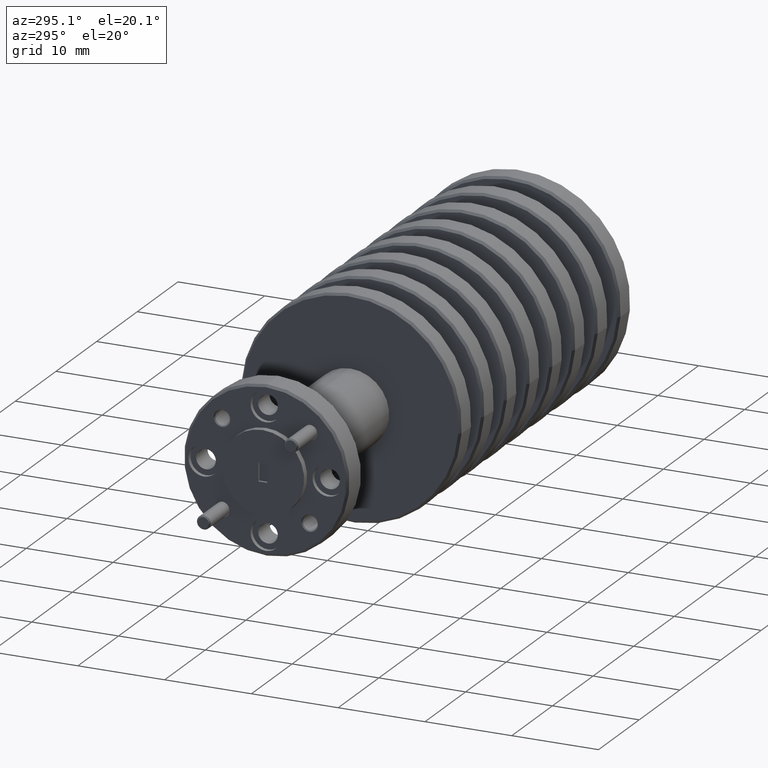
[diagram: clean part render]
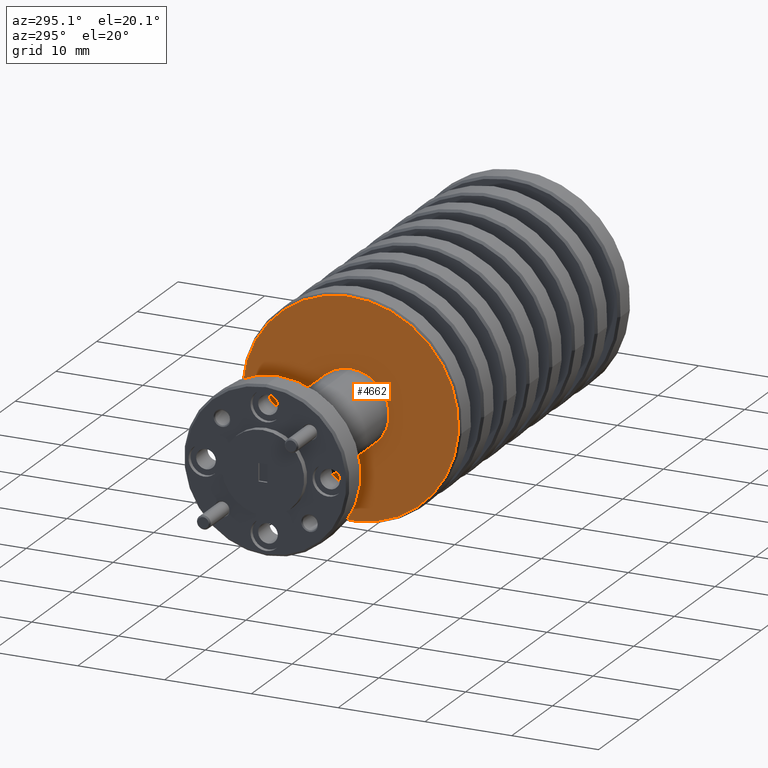
[diagram: same view with one face highlighted and labeled with its STEP entity id]
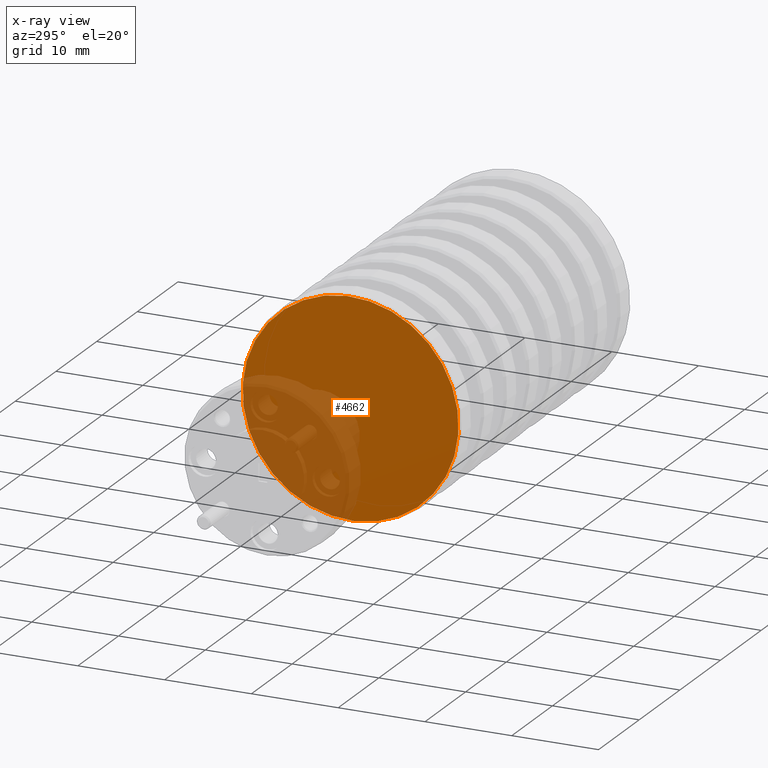
[diagram: x-ray of the same camera — body ghosted, the highlighted face saturated]
A machine part, auxiliary view. The second image highlights one B-rep face of the part: STEP entity #4662.
The next image is the same camera in x-ray: the body ghosted, the highlighted face saturated — about 31% of this face is hidden behind the body in this view.
In plain terms, the highlighted planar face has unit normal (-1, -0, 0).
Its self-contained STEP definition (entity closure, byte-faithful):
#580 = DIRECTION ( 'NONE',  ( 0.0000000000000000000, -0.9974215059003817000, -0.07176586631132356200 ) ) ;
#606 = EDGE_LOOP ( 'NONE', ( #786, #8117 ) ) ;
#786 = ORIENTED_EDGE ( 'NONE', *, *, #8089, .T. ) ;
#1043 = EDGE_CURVE ( 'NONE', #2564, #4377, #6534, .T. ) ;
#1761 = DIRECTION ( 'NONE',  ( 0.0000000000000000000, -0.9974215059003817000, -0.07176586631132361700 ) ) ;
#1805 = CARTESIAN_POINT ( 'NONE',  ( -0.8438896942806701800, 1.233292430136084100, 1.027949227593007800 ) ) ;
#1883 = CARTESIAN_POINT ( 'NONE',  ( -0.8438896942806701800, 1.197409496980422500, 1.526659980543198400 ) ) ;
#1905 = PLANE ( 'NONE',  #4199 ) ;
#2082 = FACE_OUTER_BOUND ( 'NONE', #606, .T. ) ;
#2564 = VERTEX_POINT ( 'NONE', #5911 ) ;
#3228 = AXIS2_PLACEMENT_3D ( 'NONE', #1805, #5308, #6590 ) ;
#3340 = CIRCLE ( 'NONE', #3228, 0.4900000000000001600 ) ;
#4199 = AXIS2_PLACEMENT_3D ( 'NONE', #1883, #7454, #580 ) ;
#4377 = VERTEX_POINT ( 'NONE', #5069 ) ;
#4662 = ADVANCED_FACE ( 'NONE', ( #2082 ), #1905, .T. ) ;
#5069 = CARTESIAN_POINT ( 'NONE',  ( -0.8438896942806701800, 1.722028968027271100, 1.063114502085556100 ) ) ;
#5308 = DIRECTION ( 'NONE',  ( -1.000000000000000000, -0.0000000000000000000, 0.0000000000000000000 ) ) ;
#5911 = CARTESIAN_POINT ( 'NONE',  ( -0.8438896942806701800, 0.7445558922448969300, 0.9927839531004593000 ) ) ;
#6534 = CIRCLE ( 'NONE', #8517, 0.4900000000000001600 ) ;
#6569 = DIRECTION ( 'NONE',  ( -1.000000000000000000, -0.0000000000000000000, 0.0000000000000000000 ) ) ;
#6590 = DIRECTION ( 'NONE',  ( 0.0000000000000000000, -0.9974215059003817000, -0.07176586631132361700 ) ) ;
#7330 = CARTESIAN_POINT ( 'NONE',  ( -0.8438896942806701800, 1.233292430136084100, 1.027949227593007800 ) ) ;
#7454 = DIRECTION ( 'NONE',  ( -1.000000000000000000, -0.0000000000000000000, 0.0000000000000000000 ) ) ;
#8089 = EDGE_CURVE ( 'NONE', #4377, #2564, #3340, .T. ) ;
#8117 = ORIENTED_EDGE ( 'NONE', *, *, #1043, .T. ) ;
#8517 = AXIS2_PLACEMENT_3D ( 'NONE', #7330, #6569, #1761 ) ;